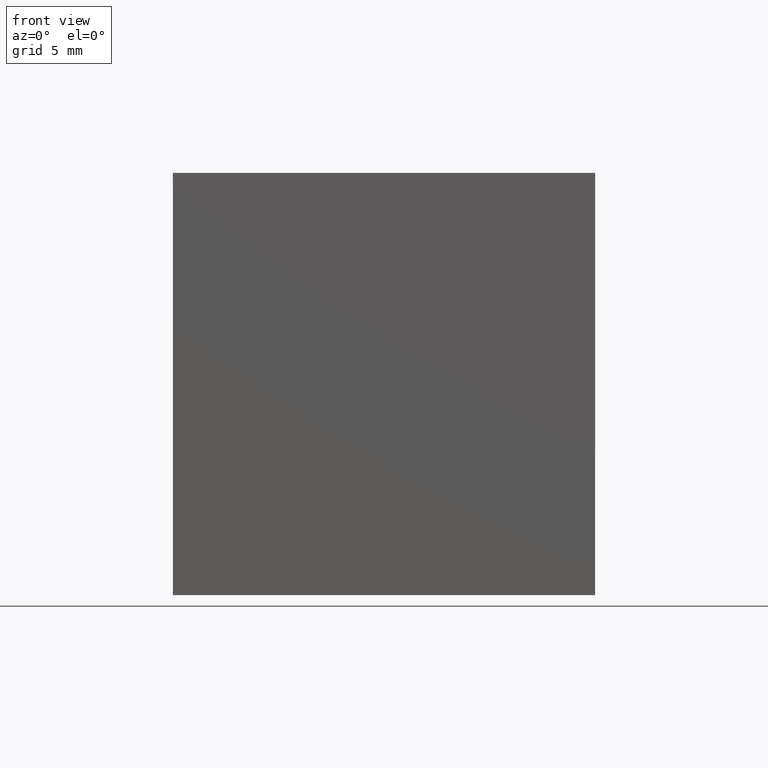
[diagram: clean part render]
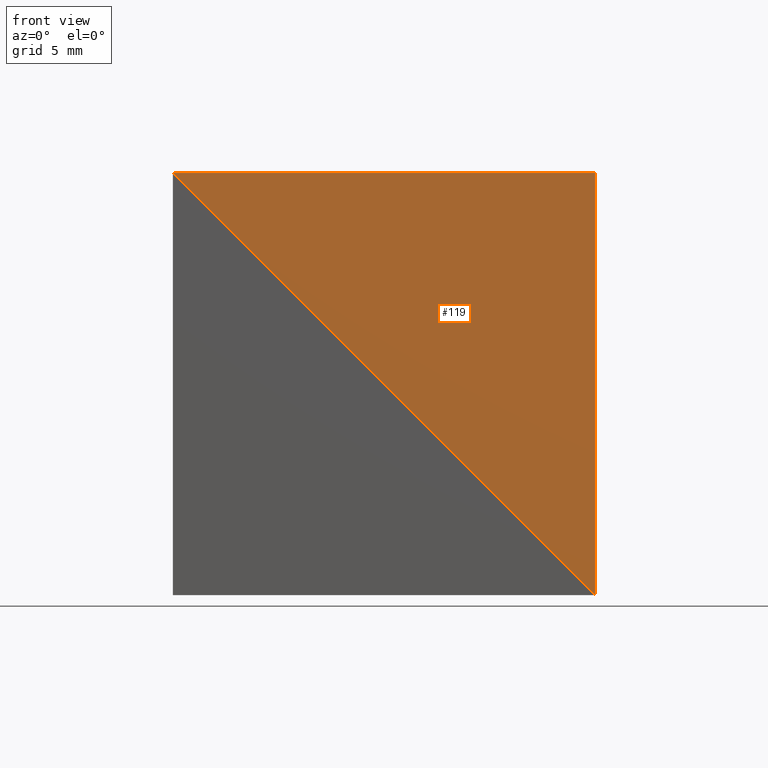
[diagram: same view with one face highlighted and labeled with its STEP entity id]
A machine part, front view. The second image highlights one B-rep face of the part: STEP entity #119.
In plain terms, the highlighted planar face has unit normal (-0, 1, 0).
Its self-contained STEP definition (entity closure, byte-faithful):
#22 = LINE ( 'NONE', #117, #297 ) ;
#26 = DIRECTION ( 'NONE',  ( 1.000000000000000000, 0.000000000000000000, 0.000000000000000000 ) ) ;
#32 = DIRECTION ( 'NONE',  ( -0.7071067811865474617, 0.000000000000000000, 0.7071067811865474617 ) ) ;
#73 = VECTOR ( 'NONE', #193, 1000.000000000000000 ) ;
#76 = PLANE ( 'NONE',  #203 ) ;
#81 = VERTEX_POINT ( 'NONE', #118 ) ;
#94 = CARTESIAN_POINT ( 'NONE',  ( -12.69999999999999929, 0.000000000000000000, 12.69999999999999929 ) ) ;
#95 = FACE_OUTER_BOUND ( 'NONE', #133, .T. ) ;
#105 = LINE ( 'NONE', #279, #191 ) ;
#117 = CARTESIAN_POINT ( 'NONE',  ( 12.69999999999999929, 0.000000000000000000, 12.69999999999999929 ) ) ;
#118 = CARTESIAN_POINT ( 'NONE',  ( 12.69999999999999929, 0.000000000000000000, 12.69999999999999929 ) ) ;
#119 = ADVANCED_FACE ( 'NONE', ( #95 ), #76, .F. ) ;
#133 = EDGE_LOOP ( 'NONE', ( #223, #196, #282 ) ) ;
#142 = DIRECTION ( 'NONE',  ( 0.000000000000000000, 0.000000000000000000, -1.000000000000000000 ) ) ;
#155 = VERTEX_POINT ( 'NONE', #94 ) ;
#169 = EDGE_CURVE ( 'NONE', #155, #81, #216, .T. ) ;
#190 = CARTESIAN_POINT ( 'NONE',  ( 3.719743878930840353, 0.000000000000000000, 3.719743878930850123 ) ) ;
#191 = VECTOR ( 'NONE', #32, 1000.000000000000114 ) ;
#193 = DIRECTION ( 'NONE',  ( 1.000000000000000000, 0.000000000000000000, 0.000000000000000000 ) ) ;
#196 = ORIENTED_EDGE ( 'NONE', *, *, #169, .F. ) ;
#199 = EDGE_CURVE ( 'NONE', #81, #206, #22, .T. ) ;
#203 = AXIS2_PLACEMENT_3D ( 'NONE', #190, #319, #26 ) ;
#206 = VERTEX_POINT ( 'NONE', #214 ) ;
#214 = CARTESIAN_POINT ( 'NONE',  ( 12.69999999999999929, 0.000000000000000000, -12.69999999999999929 ) ) ;
#216 = LINE ( 'NONE', #242, #73 ) ;
#223 = ORIENTED_EDGE ( 'NONE', *, *, #199, .F. ) ;
#242 = CARTESIAN_POINT ( 'NONE',  ( -12.69999999999999929, 0.000000000000000000, 12.69999999999999929 ) ) ;
#279 = CARTESIAN_POINT ( 'NONE',  ( 12.69999999999999929, 0.000000000000000000, -12.69999999999999929 ) ) ;
#282 = ORIENTED_EDGE ( 'NONE', *, *, #312, .F. ) ;
#297 = VECTOR ( 'NONE', #142, 1000.000000000000000 ) ;
#312 = EDGE_CURVE ( 'NONE', #206, #155, #105, .T. ) ;
#319 = DIRECTION ( 'NONE',  ( -0.000000000000000000, 1.000000000000000000, 0.000000000000000000 ) ) ;